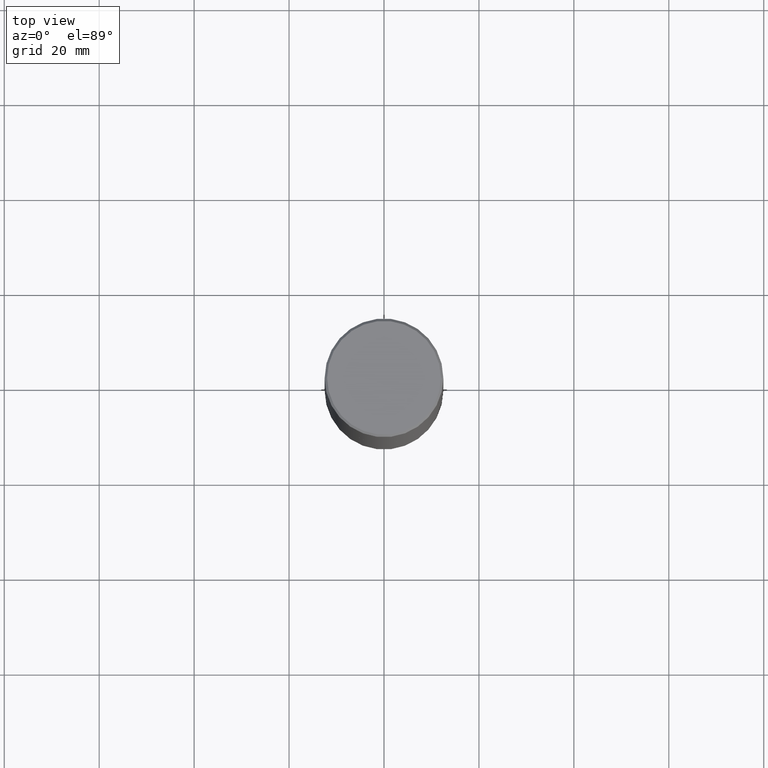
[diagram: clean part render]
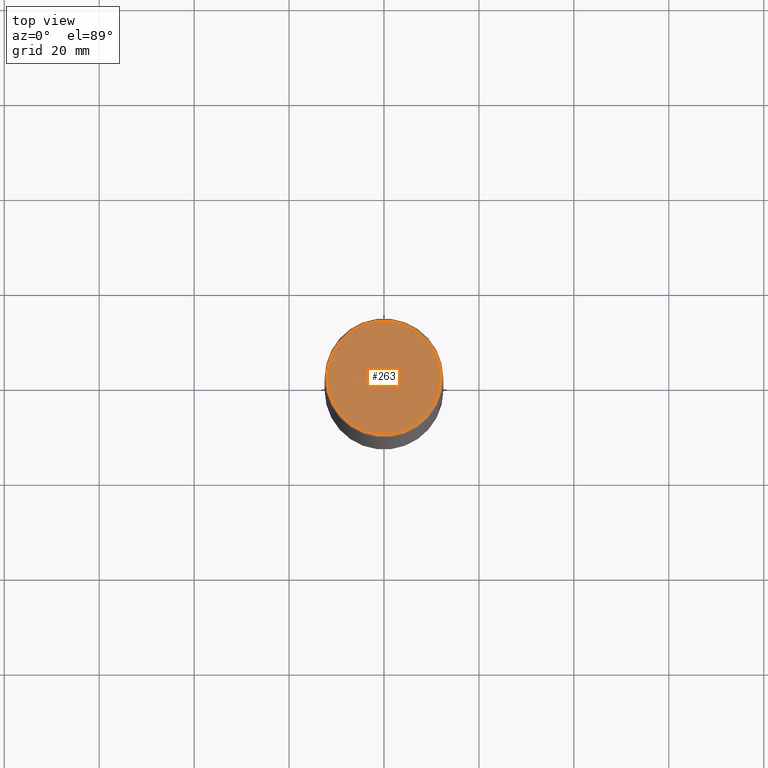
[diagram: same view with one face highlighted and labeled with its STEP entity id]
A machine part, top view. The second image highlights one B-rep face of the part: STEP entity #263.
In plain terms, the highlighted planar face has unit normal (0, -0, -1).
Its self-contained STEP definition (entity closure, byte-faithful):
#75 = VERTEX_POINT ( 'NONE', #240 ) ;
#89 = DIRECTION ( 'NONE',  ( 1.000000000000000000, -6.982962677686265922E-15, 4.876006802227162976E-29 ) ) ;
#91 = FACE_OUTER_BOUND ( 'NONE', #229, .T. ) ;
#111 = VERTEX_POINT ( 'NONE', #248 ) ;
#115 = DIRECTION ( 'NONE',  ( 2.438088387897960049E-29, -3.491481338843145188E-15, -1.000000000000000000 ) ) ;
#144 = AXIS2_PLACEMENT_3D ( 'NONE', #198, #344, #89 ) ;
#180 = AXIS2_PLACEMENT_3D ( 'NONE', #266, #115, #235 ) ;
#182 = AXIS2_PLACEMENT_3D ( 'NONE', #230, #195, #340 ) ;
#195 = DIRECTION ( 'NONE',  ( -2.445468806185136597E-29, 3.491481338843145583E-15, 1.000000000000000000 ) ) ;
#198 = CARTESIAN_POINT ( 'NONE',  ( -2.087702828670439639E-46, 2.980686340760894400E-32, 8.537024980200822558E-18 ) ) ;
#207 = PLANE ( 'NONE',  #180 ) ;
#229 = EDGE_LOOP ( 'NONE', ( #275, #286 ) ) ;
#230 = CARTESIAN_POINT ( 'NONE',  ( -2.087702828670439639E-46, 2.980686340760894400E-32, 8.537024980200822558E-18 ) ) ;
#235 = DIRECTION ( 'NONE',  ( -1.000000000000000000, 6.982962677686265922E-15, -4.876176775795935793E-29 ) ) ;
#240 = CARTESIAN_POINT ( 'NONE',  ( 0.4721499999999996255, -3.342703923013973396E-15, 8.537024980224040028E-18 ) ) ;
#246 = EDGE_CURVE ( 'NONE', #111, #75, #299, .T. ) ;
#248 = CARTESIAN_POINT ( 'NONE',  ( -0.4721499999999996255, 3.331920641657999252E-15, 8.537024980177643606E-18 ) ) ;
#263 = ADVANCED_FACE ( 'NONE', ( #91 ), #207, .F. ) ;
#266 = CARTESIAN_POINT ( 'NONE',  ( 3.297005828269567997E-15, 0.4721499999999996255, -1.644234401644689488E-15 ) ) ;
#275 = ORIENTED_EDGE ( 'NONE', *, *, #246, .T. ) ;
#286 = ORIENTED_EDGE ( 'NONE', *, *, #333, .T. ) ;
#299 = CIRCLE ( 'NONE', #144, 0.4721499999999996255 ) ;
#315 = CIRCLE ( 'NONE', #182, 0.4721499999999996255 ) ;
#333 = EDGE_CURVE ( 'NONE', #75, #111, #315, .T. ) ;
#340 = DIRECTION ( 'NONE',  ( 1.000000000000000000, -6.982962677686265922E-15, 4.876006802227162976E-29 ) ) ;
#344 = DIRECTION ( 'NONE',  ( -2.445468806185136597E-29, 3.491481338843145583E-15, 1.000000000000000000 ) ) ;